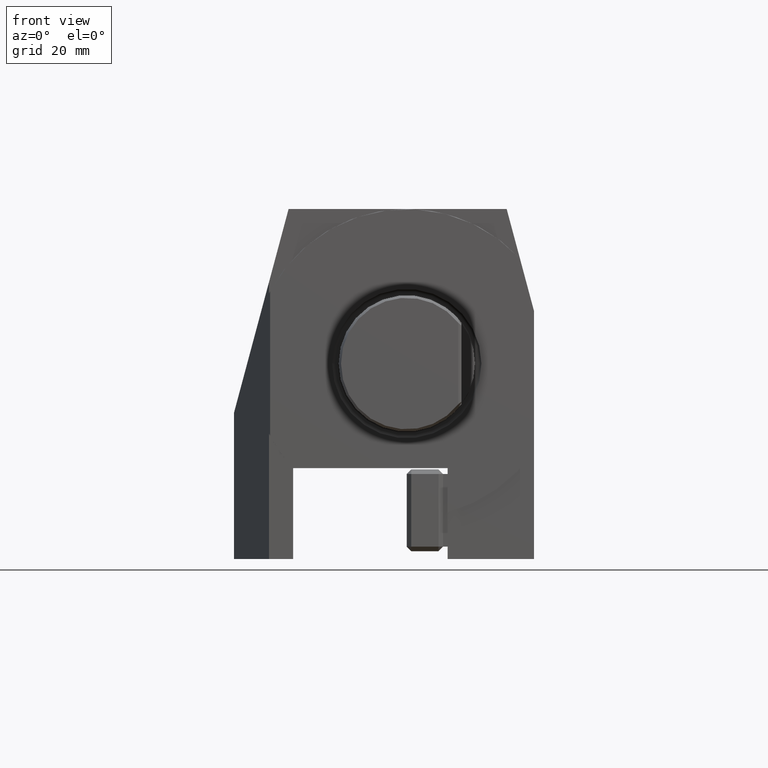
[diagram: clean part render]
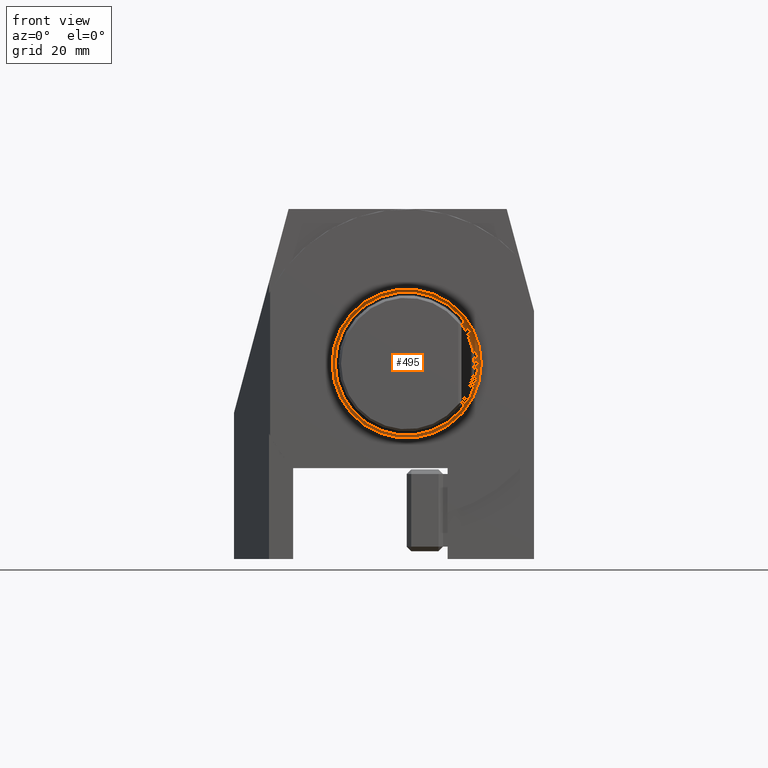
[diagram: same view with one face highlighted and labeled with its STEP entity id]
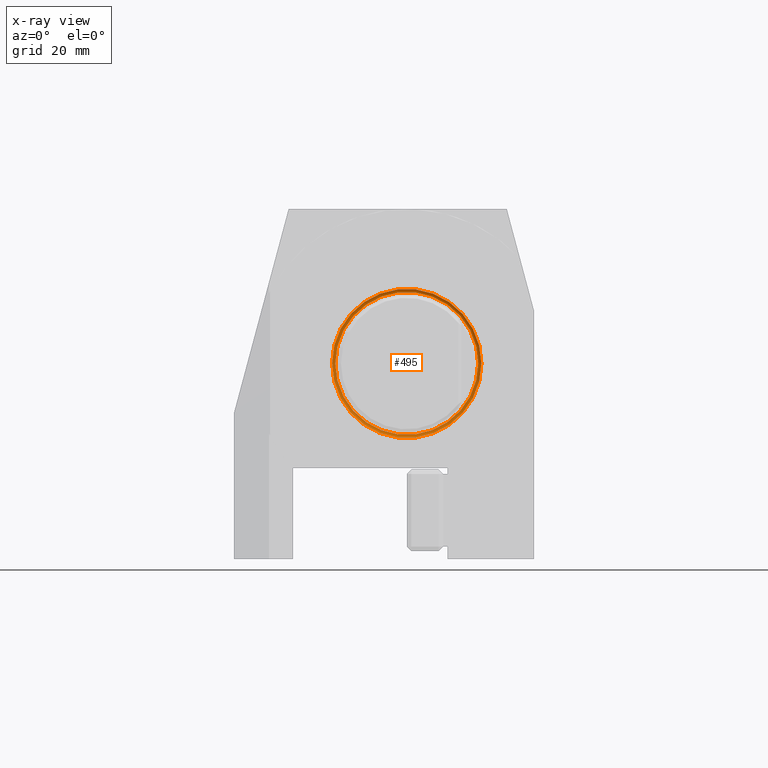
[diagram: x-ray of the same camera — body ghosted, the highlighted face saturated]
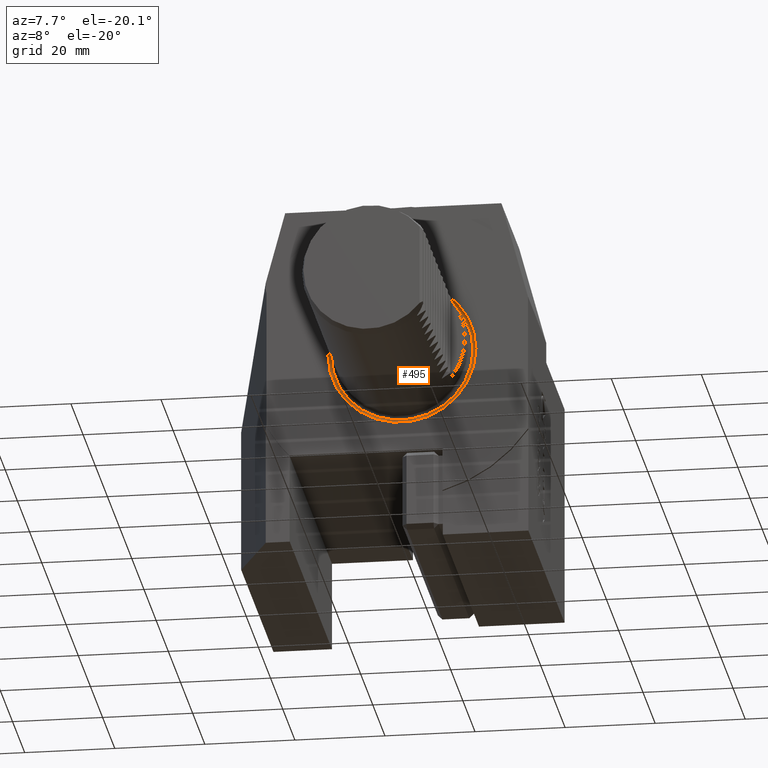
[diagram: same view with one face highlighted and labeled with its STEP entity id]
A machine part, front view. The second image highlights one B-rep face of the part: STEP entity #495.
The next image is the same camera in x-ray: the body ghosted, the highlighted face saturated — about 0% of this face is hidden behind the body in this view.
A second angle (auxiliary view) of the same face is appended — the face is thin or edge-on in the first view.
In plain terms, the highlighted toroidal blend (fillet) surface has major radius 15.7265 mm and minor (blend) radius 0.8 mm.
Its self-contained STEP definition (entity closure, byte-faithful):
#495 = ADVANCED_FACE ( 'Defeature completata2_17', ( #9331, #9572 ), #14290, .F. ) ;
#556 = DIRECTION ( 'NONE',  ( 1.000000000000000000, 1.295371175675670034E-16, 0.000000000000000000 ) ) ;
#667 = EDGE_LOOP ( 'NONE', ( #6722 ) ) ;
#1039 = DIRECTION ( 'NONE',  ( -1.295371175675670281E-16, 1.000000000000000000, -0.000000000000000000 ) ) ;
#1590 = DIRECTION ( 'NONE',  ( -1.000000000000000000, -1.295371175675670281E-16, 0.000000000000000000 ) ) ;
#3620 = CARTESIAN_POINT ( 'NONE',  ( -5.181484702702722169E-17, 0.4000000000000031863, 0.000000000000000000 ) ) ;
#3827 = CARTESIAN_POINT ( 'NONE',  ( 16.41932208922751002, 4.186895783574472557E-15, 0.000000000000000000 ) ) ;
#4703 = DIRECTION ( 'NONE',  ( -1.000000000000000000, -1.309880708594622424E-16, 0.000000000000000000 ) ) ;
#5087 = VERTEX_POINT ( 'NONE', #7482 ) ;
#5801 = CARTESIAN_POINT ( 'NONE',  ( -5.181484702702668551E-17, 2.059984127722458425E-15, 0.000000000000000000 ) ) ;
#6722 = ORIENTED_EDGE ( 'NONE', *, *, #8986, .T. ) ;
#7482 = CARTESIAN_POINT ( 'NONE',  ( -15.72650176619996110, 0.4000000000000010769, 0.000000000000000000 ) ) ;
#7552 = AXIS2_PLACEMENT_3D ( 'NONE', #3620, #1039, #4703 ) ;
#7836 = AXIS2_PLACEMENT_3D ( 'NONE', #5801, #11957, #556 ) ;
#7933 = AXIS2_PLACEMENT_3D ( 'NONE', #10669, #15719, #1590 ) ;
#8986 = EDGE_CURVE ( 'NONE', #5087, #5087, #14433, .T. ) ;
#9331 = FACE_OUTER_BOUND ( 'NONE', #667, .T. ) ;
#9572 = FACE_OUTER_BOUND ( 'NONE', #10203, .T. ) ;
#9815 = VERTEX_POINT ( 'NONE', #3827 ) ;
#10203 = EDGE_LOOP ( 'NONE', ( #15720 ) ) ;
#10669 = CARTESIAN_POINT ( 'NONE',  ( 0.000000000000000000, -0.3999999999999969691, 0.000000000000000000 ) ) ;
#11957 = DIRECTION ( 'NONE',  ( 1.295371175675670281E-16, -1.000000000000000000, 0.000000000000000000 ) ) ;
#14290 = TOROIDAL_SURFACE ( 'NONE', #7933, 15.72650176619996110, 0.7999999999999994893 ) ;
#14433 = CIRCLE ( 'NONE', #7552, 15.72650176619996110 ) ;
#14955 = EDGE_CURVE ( 'NONE', #9815, #9815, #16058, .T. ) ;
#15719 = DIRECTION ( 'NONE',  ( -1.295371175675670281E-16, 1.000000000000000000, -0.000000000000000000 ) ) ;
#15720 = ORIENTED_EDGE ( 'NONE', *, *, #14955, .T. ) ;
#16058 = CIRCLE ( 'NONE', #7836, 16.41932208922751002 ) ;